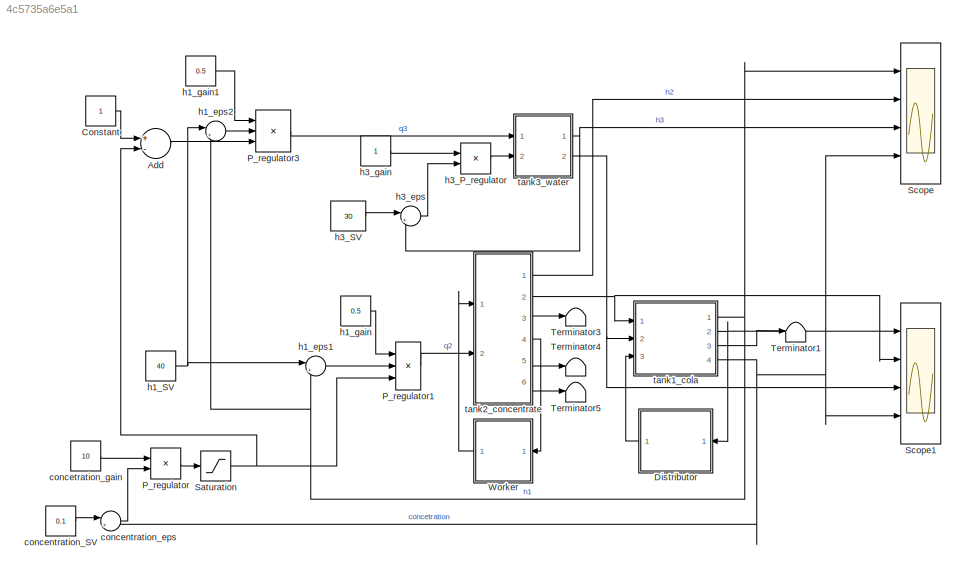
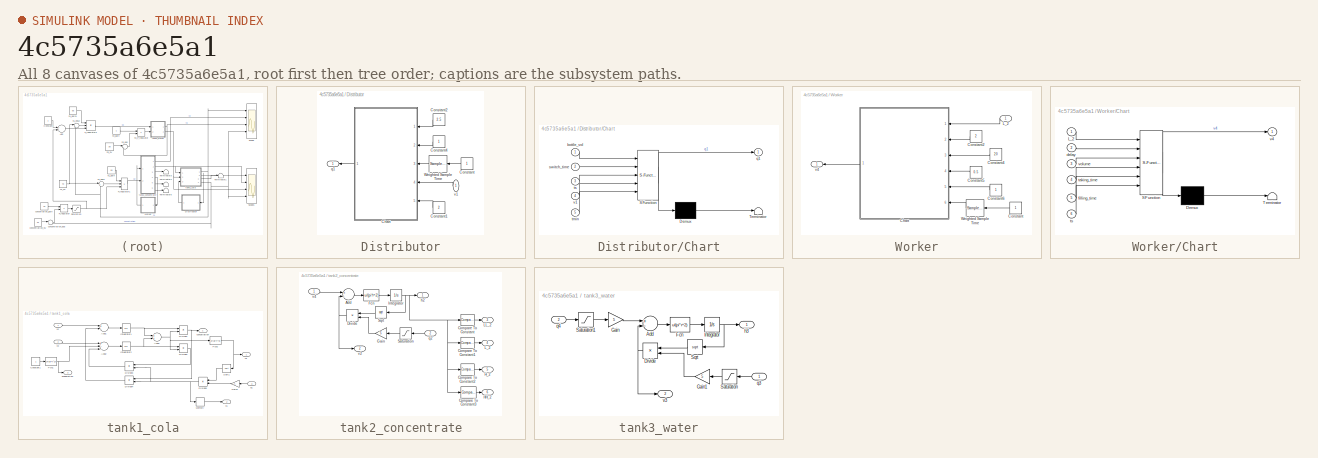
[diagram: thumbnail index - all 8 canvases of the model, root first then tree order]
MODEL slx_4c5735a6e5a1
KIND model
CONFIG AbsTol = auto
CONFIG FixedStep = 0.05
CONFIG InitFcn = run init.m
CONFIG MaxStep = auto
CONFIG MinStep = auto
CONFIG RelTol = 1e-3
CONFIG SampleTimeConstraint = Unconstrained
CONFIG Solver = ode4
CONFIG SolverMode = Auto
CONFIG SolverName = ode4
CONFIG StartTime = 0.0
CONFIG StopTime = 200.0
BLOCK [Sum] Add
  InputSameDT = off
  Inputs = +-
  OutDataTypeStr = Inherit: Inherit via internal rule
  Ports = [2, 1]
  SaturateOnIntegerOverflow = off
BLOCK [Constant] Constant
BLOCK [SubSystem] Distributor
  Ports = [1, 1]
  RequestExecContextInheritance = off
  Variant = off
BLOCK [SubSystem] Distributor/Chart
  ErrorFcn = Stateflow.Translate.translate
  PermitHierarchicalResolution = ExplicitOnly
  Ports = [5, 1]
  RequestExecContextInheritance = off
  SFBlockType = Chart
  TreatAsAtomicUnit = on
  Variant = off
BLOCK [Demux] Distributor/Chart/ Demux 
  Outputs = 1
  Ports = [1, 1]
BLOCK [S-Function] Distributor/Chart/ SFunction 
  EnableBusSupport = on
  FunctionName = sf_sfun
  PortCounts = [5 2]
  Ports = [5, 2]
  SFunctionDeploymentMode = off
  Tag = Stateflow S-Function zbiorniki 1
BLOCK [Terminator] Distributor/Chart/ Terminator 
BLOCK [Inport] Distributor/Chart/bottle_vol
  IconDisplay = Port number
BLOCK [Outport] Distributor/Chart/q1
  IconDisplay = Port number
BLOCK [Inport] Distributor/Chart/switch_time
  IconDisplay = Port number
  Port = 2
BLOCK [Inport] Distributor/Chart/tmin
  IconDisplay = Port number
  Port = 5
BLOCK [Inport] Distributor/Chart/ts
  IconDisplay = Port number
  Port = 3
BLOCK [Inport] Distributor/Chart/v1
  IconDisplay = Port number
  Port = 4
BLOCK [Constant] Distributor/Constant
BLOCK [Constant] Distributor/Constant1
  Value = 2
BLOCK [Constant] Distributor/Constant2
  Value = 2.5
BLOCK [Constant] Distributor/Constant4
BLOCK [SampleTimeMath] Distributor/Weighted Sample Time
  TsampMathOp = Ts Only
  weightValue = 1
BLOCK [Outport] Distributor/q1
  IconDisplay = Port number
BLOCK [Inport] Distributor/v1
  IconDisplay = Port number
BLOCK [Product] P_regulator
  InputSameDT = off
  Inputs = **
  OutDataTypeStr = Inherit: Inherit via internal rule
  Ports = [2, 1]
  RndMeth = Floor
  SaturateOnIntegerOverflow = off
BLOCK [Product] P_regulator1
  InputSameDT = off
  Inputs = ***
  OutDataTypeStr = Inherit: Inherit via internal rule
  Ports = [3, 1]
  RndMeth = Floor
  SaturateOnIntegerOverflow = off
BLOCK [Product] P_regulator3
  InputSameDT = off
  Inputs = ***
  OutDataTypeStr = Inherit: Inherit via internal rule
  Ports = [3, 1]
  RndMeth = Floor
  SaturateOnIntegerOverflow = off
BLOCK [Saturate] Saturation
  InputPortMap = u0
  LowerLimit = 0
  Ports = [1, 1]
BLOCK [Scope] Scope
  NumInputPorts = 4
  Ports = [4]
  ScopeSpecificationString = Simulink.scopes.TimeScopeBlockCfg('CurrentConfiguration', extmgr.ConfigurationSet(extmgr.Configuration('Core','General UI',true),extmgr.Configuration('Core','Source UI',true),extmgr.Configuration('Sources','WiredSimulink',true),extmgr.Configuration('Visuals','Time Domain',true,'SerializedDisplays',{struct('MinYLimReal','-4.86788','MaxYLimReal','44.7271','YLabelReal','','MinYLimMag','0.00000','MaxY...<+2049ch>
BLOCK [Scope] Scope1
  NumInputPorts = 4
  Ports = [4]
  ScopeSpecificationString = Simulink.scopes.TimeScopeBlockCfg('CurrentConfiguration', extmgr.ConfigurationSet(extmgr.Configuration('Core','General UI',true),extmgr.Configuration('Core','Source UI',true),extmgr.Configuration('Sources','WiredSimulink',true,'DataLoggingVariableName','ScopeData1'),extmgr.Configuration('Visuals','Time Domain',true,'SerializedDisplays',{struct('MinYLimReal','-5.68334','MaxYLimReal','51.15005','YLa...<+1524ch>
BLOCK [Terminator] Terminator1
BLOCK [Terminator] Terminator3
BLOCK [Terminator] Terminator4
BLOCK [Terminator] Terminator5
BLOCK [SubSystem] Worker
  Ports = [1, 1]
  RequestExecContextInheritance = off
  Variant = off
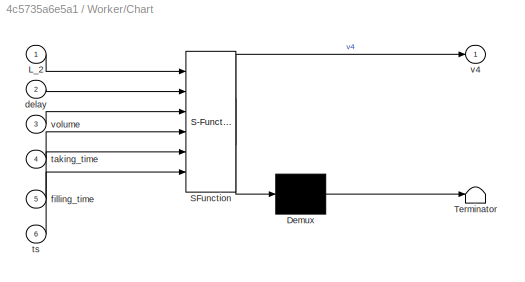
BLOCK [SubSystem] Worker/Chart
  ErrorFcn = Stateflow.Translate.translate
  PermitHierarchicalResolution = ExplicitOnly
  Ports = [6, 1]
  RequestExecContextInheritance = off
  SFBlockType = Chart
  TreatAsAtomicUnit = on
  Variant = off
BLOCK [Demux] Worker/Chart/ Demux 
  Outputs = 1
  Ports = [1, 1]
BLOCK [S-Function] Worker/Chart/ SFunction 
  EnableBusSupport = on
  FunctionName = sf_sfun
  PortCounts = [6 2]
  Ports = [6, 2]
  SFunctionDeploymentMode = off
  Tag = Stateflow S-Function zbiorniki 3
BLOCK [Terminator] Worker/Chart/ Terminator 
BLOCK [Inport] Worker/Chart/L_2
  IconDisplay = Port number
BLOCK [Inport] Worker/Chart/delay
  IconDisplay = Port number
  Port = 2
BLOCK [Inport] Worker/Chart/filling_time
  IconDisplay = Port number
  Port = 5
BLOCK [Inport] Worker/Chart/taking_time
  IconDisplay = Port number
  Port = 4
BLOCK [Inport] Worker/Chart/ts
  IconDisplay = Port number
  Port = 6
BLOCK [Outport] Worker/Chart/v4
  IconDisplay = Port number
BLOCK [Inport] Worker/Chart/volume
  IconDisplay = Port number
  Port = 3
BLOCK [Constant] Worker/Constant
BLOCK [Constant] Worker/Constant2
  Value = 2
BLOCK [Constant] Worker/Constant4
  Value = 20
BLOCK [Constant] Worker/Constant5
  Value = 0.5
BLOCK [Constant] Worker/Constant6
BLOCK [Inport] Worker/L_2
  IconDisplay = Port number
BLOCK [SampleTimeMath] Worker/Weighted Sample Time
  TsampMathOp = Ts Only
  weightValue = 1
BLOCK [Outport] Worker/v4
  IconDisplay = Port number
BLOCK [Constant] concentration_SV
  Value = 0.1
BLOCK [Sum] concentration_eps
  IconShape = round
  InputSameDT = off
  Inputs = |+-
  OutDataTypeStr = Inherit: Inherit via internal rule
  Ports = [2, 1]
  SaturateOnIntegerOverflow = off
BLOCK [Constant] concetration_gain
  Value = 10
BLOCK [Constant] h1_SV
  Value = 40
BLOCK [Sum] h1_eps1
  IconShape = round
  InputSameDT = off
  Inputs = |+-
  OutDataTypeStr = Inherit: Inherit via internal rule
  Ports = [2, 1]
  SaturateOnIntegerOverflow = off
BLOCK [Sum] h1_eps2
  IconShape = round
  InputSameDT = off
  Inputs = |+-
  OutDataTypeStr = Inherit: Inherit via internal rule
  Ports = [2, 1]
  SaturateOnIntegerOverflow = off
BLOCK [Constant] h1_gain
  Value = 0.5
BLOCK [Constant] h1_gain1
  Value = 0.5
BLOCK [Product] h3_P_regulator
  InputSameDT = off
  Inputs = **
  OutDataTypeStr = Inherit: Inherit via internal rule
  Ports = [2, 1]
  RndMeth = Floor
  SaturateOnIntegerOverflow = off
BLOCK [Constant] h3_SV
  Value = 30
BLOCK [Sum] h3_eps
  IconShape = round
  InputSameDT = off
  Inputs = |+-
  OutDataTypeStr = Inherit: Inherit via internal rule
  Ports = [2, 1]
  SaturateOnIntegerOverflow = off
BLOCK [Constant] h3_gain
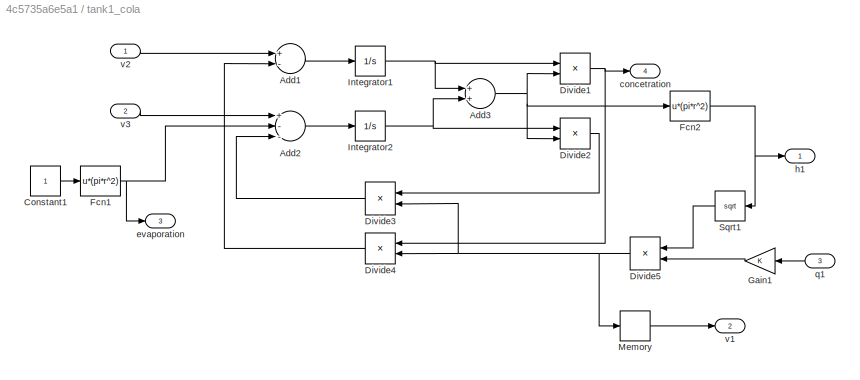
BLOCK [SubSystem] tank1_cola
  Ports = [3, 4]
  RequestExecContextInheritance = off
  Variant = off
BLOCK [Sum] tank1_cola/Add1
  InputSameDT = off
  Inputs = +-
  OutDataTypeStr = Inherit: Inherit via internal rule
  Ports = [2, 1]
  SaturateOnIntegerOverflow = off
BLOCK [Sum] tank1_cola/Add2
  InputSameDT = off
  Inputs = +--
  OutDataTypeStr = Inherit: Inherit via internal rule
  Ports = [3, 1]
  SaturateOnIntegerOverflow = off
BLOCK [Sum] tank1_cola/Add3
  InputSameDT = off
  OutDataTypeStr = Inherit: Inherit via internal rule
  Ports = [2, 1]
  SaturateOnIntegerOverflow = off
BLOCK [Constant] tank1_cola/Constant1
BLOCK [Product] tank1_cola/Divide1
  InputSameDT = off
  Inputs = */
  OutDataTypeStr = Inherit: Inherit via internal rule
  Ports = [2, 1]
  RndMeth = Floor
  SaturateOnIntegerOverflow = off
BLOCK [Product] tank1_cola/Divide2
  InputSameDT = off
  Inputs = */
  OutDataTypeStr = Inherit: Inherit via internal rule
  Ports = [2, 1]
  RndMeth = Floor
  SaturateOnIntegerOverflow = off
BLOCK [Product] tank1_cola/Divide3
  InputSameDT = off
  OutDataTypeStr = Inherit: Inherit via internal rule
  Ports = [2, 1]
  RndMeth = Floor
  SaturateOnIntegerOverflow = off
BLOCK [Product] tank1_cola/Divide4
  InputSameDT = off
  OutDataTypeStr = Inherit: Inherit via internal rule
  Ports = [2, 1]
  RndMeth = Floor
  SaturateOnIntegerOverflow = off
BLOCK [Product] tank1_cola/Divide5
  InputSameDT = off
  OutDataTypeStr = Inherit: Inherit via internal rule
  Ports = [2, 1]
  RndMeth = Floor
  SaturateOnIntegerOverflow = off
BLOCK [Fcn] tank1_cola/Fcn1
  Expr = u*(pi*r^2)
BLOCK [Fcn] tank1_cola/Fcn2
  Expr = u*(pi*r^2)
BLOCK [Gain] tank1_cola/Gain1
  OutDataTypeStr = Inherit: Inherit via internal rule
  ParamDataTypeStr = Inherit: Inherit via internal rule
  SaturateOnIntegerOverflow = off
BLOCK [Integrator] tank1_cola/Integrator1
  InitialCondition = 5/(pi*r^2)
  LimitOutput = on
  LowerSaturationLimit = 0
  Ports = [1, 1]
BLOCK [Integrator] tank1_cola/Integrator2
  InitialCondition = 10/(pi*r^2)
  LimitOutput = on
  LowerSaturationLimit = 0
  Ports = [1, 1]
BLOCK [Memory] tank1_cola/Memory
BLOCK [Sqrt] tank1_cola/Sqrt1
BLOCK [Outport] tank1_cola/concetration
  IconDisplay = Port number
  Port = 4
BLOCK [Outport] tank1_cola/evaporation
  IconDisplay = Port number
  Port = 3
BLOCK [Outport] tank1_cola/h1
  IconDisplay = Port number
BLOCK [Inport] tank1_cola/q1
  IconDisplay = Port number
  Port = 3
BLOCK [Outport] tank1_cola/v1
  IconDisplay = Port number
  Port = 2
BLOCK [Inport] tank1_cola/v2
  IconDisplay = Port number
BLOCK [Inport] tank1_cola/v3
  IconDisplay = Port number
  Port = 2
BLOCK [SubSystem] tank2_concentrate
  Ports = [2, 6]
  RequestExecContextInheritance = off
  Variant = off
BLOCK [Sum] tank2_concentrate/Add
  InputSameDT = off
  Inputs = +-
  OutDataTypeStr = Inherit: Inherit via internal rule
  Ports = [2, 1]
  SaturateOnIntegerOverflow = off
BLOCK [Reference] tank2_concentrate/Compare To Constant  REF=simulink/Logic and Bit
Operations/Compare
To Constant
  Ports = [1, 1]
  SourceBlock = simulink/Logic and Bit\nOperations/Compare\nTo Constant
  SourceType = Compare To Constant
BLOCK [Reference] tank2_concentrate/Compare To Constant1  REF=simulink/Logic and Bit
Operations/Compare
To Constant
  Ports = [1, 1]
  SourceBlock = simulink/Logic and Bit\nOperations/Compare\nTo Constant
  SourceType = Compare To Constant
BLOCK [Reference] tank2_concentrate/Compare To Constant2  REF=simulink/Logic and Bit
Operations/Compare
To Constant
  Ports = [1, 1]
  SourceBlock = simulink/Logic and Bit\nOperations/Compare\nTo Constant
  SourceType = Compare To Constant
BLOCK [Reference] tank2_concentrate/Compare To Constant3  REF=simulink/Logic and Bit
Operations/Compare
To Constant
  Ports = [1, 1]
  SourceBlock = simulink/Logic and Bit\nOperations/Compare\nTo Constant
  SourceType = Compare To Constant
BLOCK [Product] tank2_concentrate/Divide
  InputSameDT = off
  OutDataTypeStr = Inherit: Inherit via internal rule
  Ports = [2, 1]
  RndMeth = Floor
  SaturateOnIntegerOverflow = off
BLOCK [Fcn] tank2_concentrate/Fcn
  Expr = u/(pi*r^2)
BLOCK [Gain] tank2_concentrate/Gain
  Gain = 5
  OutDataTypeStr = Inherit: Inherit via internal rule
  ParamDataTypeStr = Inherit: Inherit via internal rule
  SaturateOnIntegerOverflow = off
BLOCK [Outport] tank2_concentrate/HH_2
  IconDisplay = Port number
  Port = 6
BLOCK [Outport] tank2_concentrate/H_2
  IconDisplay = Port number
  Port = 5
BLOCK [Integrator] tank2_concentrate/Integrator
  InitialCondition = 20
  LimitOutput = on
  LowerSaturationLimit = 0
  Ports = [1, 1]
BLOCK [Outport] tank2_concentrate/LL_2
  IconDisplay = Port number
  Port = 3
BLOCK [Outport] tank2_concentrate/L_2
  IconDisplay = Port number
  Port = 4
BLOCK [Saturate] tank2_concentrate/Saturation
  InputPortMap = u0
  LowerLimit = 0
  Ports = [1, 1]
  UpperLimit = 1
BLOCK [Sqrt] tank2_concentrate/Sqrt
BLOCK [Outport] tank2_concentrate/h2
  IconDisplay = Port number
BLOCK [Inport] tank2_concentrate/q2
  IconDisplay = Port number
  Port = 2
BLOCK [Outport] tank2_concentrate/v2
  IconDisplay = Port number
  Port = 2
BLOCK [Inport] tank2_concentrate/v4
  IconDisplay = Port number
BLOCK [SubSystem] tank3_water
  Ports = [2, 2]
  RequestExecContextInheritance = off
  Variant = off
BLOCK [Sum] tank3_water/Add
  InputSameDT = off
  Inputs = +-
  OutDataTypeStr = Inherit: Inherit via internal rule
  Ports = [2, 1]
  SaturateOnIntegerOverflow = off
BLOCK [Product] tank3_water/Divide
  InputSameDT = off
  OutDataTypeStr = Inherit: Inherit via internal rule
  Ports = [2, 1]
  RndMeth = Floor
  SaturateOnIntegerOverflow = off
BLOCK [Fcn] tank3_water/Fcn
  Expr = u/(pi*r^2)
BLOCK [Gain] tank3_water/Gain
  Gain = 5
  OutDataTypeStr = Inherit: Inherit via internal rule
  ParamDataTypeStr = Inherit: Inherit via internal rule
  SaturateOnIntegerOverflow = off
BLOCK [Gain] tank3_water/Gain1
  Gain = 5
  OutDataTypeStr = Inherit: Inherit via internal rule
  ParamDataTypeStr = Inherit: Inherit via internal rule
  SaturateOnIntegerOverflow = off
BLOCK [Integrator] tank3_water/Integrator
  InitialCondition = 10
  Ports = [1, 1]
BLOCK [Saturate] tank3_water/Saturation
  InputPortMap = u0
  LowerLimit = 0
  Ports = [1, 1]
  UpperLimit = 1
BLOCK [Saturate] tank3_water/Saturation1
  InputPortMap = u0
  LowerLimit = 0
  Ports = [1, 1]
  UpperLimit = 1
BLOCK [Sqrt] tank3_water/Sqrt
BLOCK [Outport] tank3_water/h3
  IconDisplay = Port number
BLOCK [Inport] tank3_water/q3
  IconDisplay = Port number
BLOCK [Inport] tank3_water/q4
  IconDisplay = Port number
  Port = 2
BLOCK [Outport] tank3_water/v3
  IconDisplay = Port number
  Port = 2
LINE Add:1 -> P_regulator3:3
LINE Constant:1 -> Add:1
LINE Distributor/Chart:1 -> Distributor/q1:1
LINE Distributor/Constant1:1 -> Distributor/Chart:5
LINE Distributor/Constant2:1 -> Distributor/Chart:1
LINE Distributor/Constant4:1 -> Distributor/Chart:2
LINE Distributor/Constant:1 -> Distributor/Weighted Sample Time:1
LINE Distributor/Weighted Sample Time:1 -> Distributor/Chart:3
LINE Distributor/v1:1 -> Distributor/Chart:4
LINE Distributor:1 -> tank1_cola:3
LINE P_regulator1:1 -> tank2_concentrate:2
LINE P_regulator3:1 -> tank3_water:1
LINE P_regulator:1 -> Saturation:1
NET Saturation:1 -> Add:2, P_regulator1:3
LINE Worker/Chart:1 -> Worker/v4:1
LINE Worker/Constant2:1 -> Worker/Chart:2
LINE Worker/Constant4:1 -> Worker/Chart:3
LINE Worker/Constant5:1 -> Worker/Chart:4
LINE Worker/Constant6:1 -> Worker/Chart:5
LINE Worker/Constant:1 -> Worker/Weighted Sample Time:1
LINE Worker/L_2:1 -> Worker/Chart:1
LINE Worker/Weighted Sample Time:1 -> Worker/Chart:6
LINE Worker:1 -> tank2_concentrate:1
LINE concentration_SV:1 -> concentration_eps:1
LINE concentration_eps:1 -> P_regulator:2
LINE concetration_gain:1 -> P_regulator:1
NET h1_SV:1 -> h1_eps1:1, h1_eps2:1
LINE h1_eps1:1 -> P_regulator1:2
LINE h1_eps2:1 -> P_regulator3:2
LINE h1_gain1:1 -> P_regulator3:1
LINE h1_gain:1 -> P_regulator1:1
LINE h3_P_regulator:1 -> tank3_water:2
LINE h3_SV:1 -> h3_eps:1
LINE h3_eps:1 -> h3_P_regulator:2
LINE h3_gain:1 -> h3_P_regulator:1
LINE tank1_cola/Add1:1 -> tank1_cola/Integrator1:1
LINE tank1_cola/Add2:1 -> tank1_cola/Integrator2:1
NET tank1_cola/Add3:1 -> tank1_cola/Divide1:2, tank1_cola/Divide2:2, tank1_cola/Fcn2:1
LINE tank1_cola/Constant1:1 -> tank1_cola/Fcn1:1
NET tank1_cola/Divide1:1 -> tank1_cola/Divide4:1, tank1_cola/concetration:1
LINE tank1_cola/Divide2:1 -> tank1_cola/Divide3:1
LINE tank1_cola/Divide3:1 -> tank1_cola/Add2:3
LINE tank1_cola/Divide4:1 -> tank1_cola/Add1:2
NET tank1_cola/Divide5:1 -> tank1_cola/Divide3:2, tank1_cola/Divide4:2, tank1_cola/Memory:1
NET tank1_cola/Fcn1:1 -> tank1_cola/Add2:2, tank1_cola/evaporation:1
NET tank1_cola/Fcn2:1 -> tank1_cola/Sqrt1:1, tank1_cola/h1:1
LINE tank1_cola/Gain1:1 -> tank1_cola/Divide5:2
NET tank1_cola/Integrator1:1 -> tank1_cola/Add3:1, tank1_cola/Divide1:1
NET tank1_cola/Integrator2:1 -> tank1_cola/Add3:2, tank1_cola/Divide2:1
LINE tank1_cola/Memory:1 -> tank1_cola/v1:1
LINE tank1_cola/Sqrt1:1 -> tank1_cola/Divide5:1
LINE tank1_cola/q1:1 -> tank1_cola/Gain1:1
LINE tank1_cola/v2:1 -> tank1_cola/Add1:1
LINE tank1_cola/v3:1 -> tank1_cola/Add2:1
NET tank1_cola:1 -> Scope:1, h1_eps1:2, h1_eps2:2
NET tank1_cola:2 -> Distributor:1, Scope1:1
LINE tank1_cola:3 -> Terminator1:1
NET tank1_cola:4 -> Scope1:4, Scope:4, concentration_eps:2
LINE tank2_concentrate/Add:1 -> tank2_concentrate/Fcn:1
LINE tank2_concentrate/Compare To Constant1:1 -> tank2_concentrate/L_2:1
LINE tank2_concentrate/Compare To Constant2:1 -> tank2_concentrate/H_2:1
LINE tank2_concentrate/Compare To Constant3:1 -> tank2_concentrate/HH_2:1
LINE tank2_concentrate/Compare To Constant:1 -> tank2_concentrate/LL_2:1
NET tank2_concentrate/Divide:1 -> tank2_concentrate/Add:2, tank2_concentrate/v2:1
LINE tank2_concentrate/Fcn:1 -> tank2_concentrate/Integrator:1
LINE tank2_concentrate/Gain:1 -> tank2_concentrate/Divide:2
NET tank2_concentrate/Integrator:1 -> tank2_concentrate/Compare To Constant1:1, tank2_concentrate/Compare To Constant2:1, tank2_concentrate/Compare To Constant3:1, tank2_concentrate/Compare To Constant:1, tank2_concentrate/Sqrt:1, tank2_concentrate/h2:1
LINE tank2_concentrate/Saturation:1 -> tank2_concentrate/Gain:1
LINE tank2_concentrate/Sqrt:1 -> tank2_concentrate/Divide:1
LINE tank2_concentrate/q2:1 -> tank2_concentrate/Saturation:1
LINE tank2_concentrate/v4:1 -> tank2_concentrate/Add:1
LINE tank2_concentrate:1 -> Scope:2
NET tank2_concentrate:2 -> Scope1:2, tank1_cola:1
LINE tank2_concentrate:3 -> Terminator3:1
LINE tank2_concentrate:4 -> Worker:1
LINE tank2_concentrate:5 -> Terminator4:1
LINE tank2_concentrate:6 -> Terminator5:1
LINE tank3_water/Add:1 -> tank3_water/Fcn:1
NET tank3_water/Divide:1 -> tank3_water/Add:2, tank3_water/v3:1
LINE tank3_water/Fcn:1 -> tank3_water/Integrator:1
LINE tank3_water/Gain1:1 -> tank3_water/Divide:2
LINE tank3_water/Gain:1 -> tank3_water/Add:1
NET tank3_water/Integrator:1 -> tank3_water/Sqrt:1, tank3_water/h3:1
LINE tank3_water/Saturation1:1 -> tank3_water/Gain:1
LINE tank3_water/Saturation:1 -> tank3_water/Gain1:1
LINE tank3_water/Sqrt:1 -> tank3_water/Divide:1
LINE tank3_water/q3:1 -> tank3_water/Saturation:1
LINE tank3_water/q4:1 -> tank3_water/Saturation1:1
NET tank3_water:1 -> Scope:3, h3_eps:2
NET tank3_water:2 -> Scope1:3, tank1_cola:2
note: NET lines group one-source signal fan-out (src -> all destinations, sorted); 1:1 wires keep LINE
CHART Distributor/Chart states=3 transitions=4
  STATE_LABEL 'Start'
  STATE_LABEL 'Filling_bottle\nen: t=0;\n q1=1;\n vol=0;\ndu: vol=vol+v1*ts;\n t=t+ts;\nex: q1=0;'
  STATE_LABEL 'Waiting_for_new_bottle\nen:t2=0;\ndu: t=t+ts;\n t2=t+ts;\n'
CHART Worker/Chart states=4 transitions=6
  STATE_LABEL 'Stand_by'
  STATE_LABEL 'Waiting_for_worker\nentry: t = delay;\nduring: t = t - ts;\n'
  STATE_LABEL 'Taking_bottle\nentry: t1 = taking_time;\nduring: t1 = t - ts;'
  STATE_LABEL 'Filling_tank\nentry: v4=volume/filling_time;\n t2=filling_time;\ndu: t2 = t2 - ts;\nexit: v4=0'
